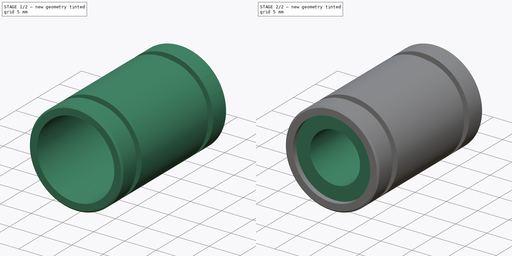
[diagram: build sequence overview — one tinted view per stage of 2, left to right]
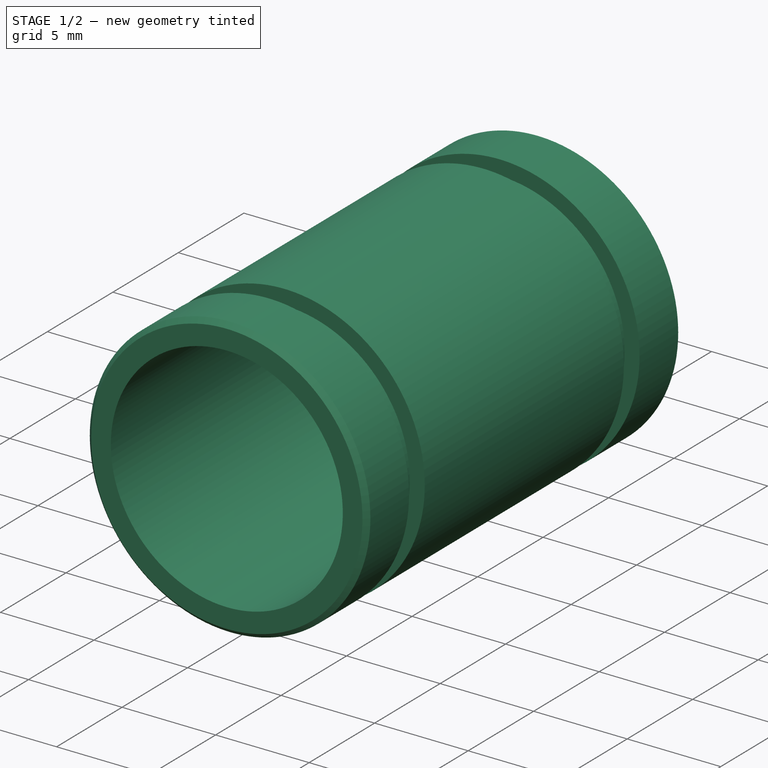
[diagram: stage 1 of 2 — iso view after this stage's code; geometry added in this stage tinted green]
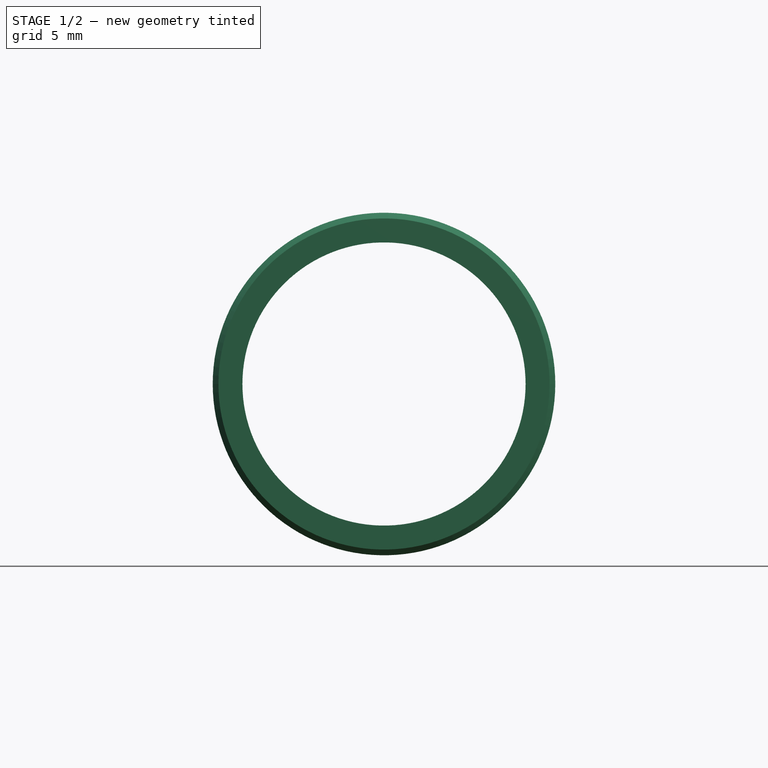
[diagram: stage 1 of 2 — front view after this stage's code; geometry added in this stage tinted green]
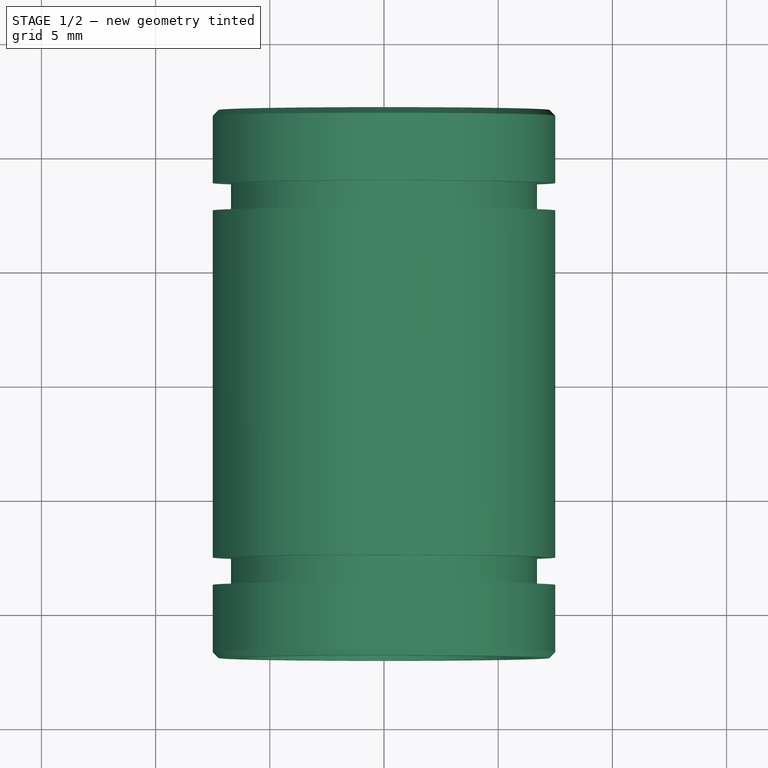
[diagram: stage 1 of 2 — top view after this stage's code; geometry added in this stage tinted green]
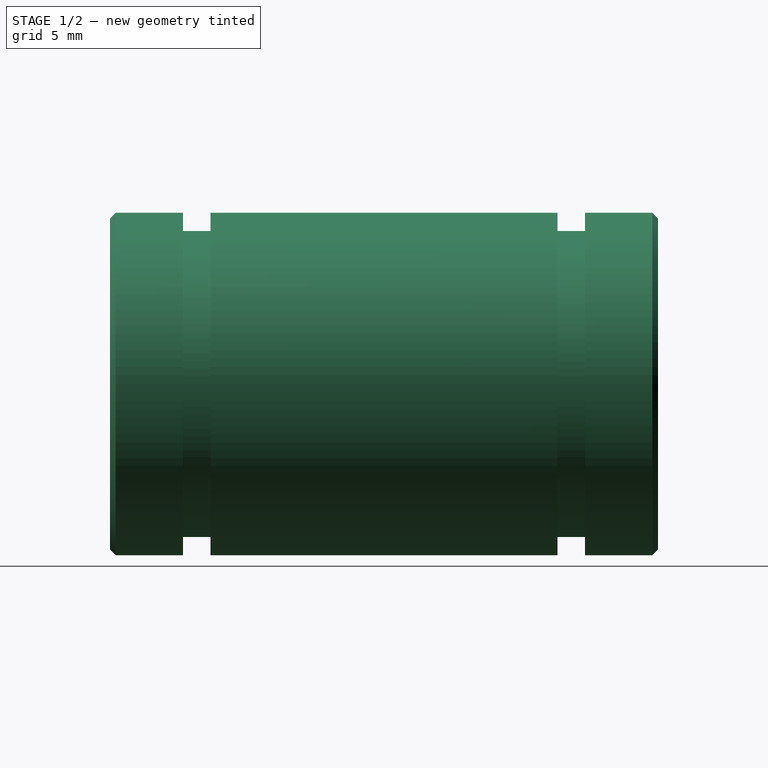
[diagram: stage 1 of 2 — right view after this stage's code; geometry added in this stage tinted green]
FCSTD DOCUMENT  (FreeCAD 0.20R26720 (Git))
Label: LM8UU
Comment: This model is licensed under CC-BY 4.0.\n\nDon´t forget to share your modifications with the community.
License: Creative Commons Attribution
LicenseURL: http://creativecommons.org/licenses/by/4.0/
objects: Sketcher::SketchObject×2, PartDesign::Body×2, PartDesign::Pad×1, PartDesign::Revolution×1, PartDesign::Chamfer×1, App::Part×1
note: 10 computed .brp shape members not serialized (recipe doc carries the construction recipe); baked Part::Feature solids carry a one-line shape summary decoded from their .brp

FEATURE [PartDesign::Body] Body  label="Center"
  Group = -> [Sketch,Pad]
  Origin = -> Origin
  Tip = -> Pad
FEATURE [Sketcher::SketchObject] Sketch001
  FullyConstrained = true
  MapMode = 5
  Support = -> [XY_Plane002]
  sketch-geometry (12):
    g0: LineSegment StartX=6.2 StartY=12 StartZ=0 EndX=6.2 EndY=-12 EndZ=0
    g1: LineSegment StartX=6.2 StartY=-12 StartZ=0 EndX=7.5 EndY=-12 EndZ=0
    g2: LineSegment StartX=7.5 StartY=-12 StartZ=0 EndX=7.5 EndY=-8.8 EndZ=0
    g3: LineSegment StartX=7.5 StartY=-8.8 StartZ=0 EndX=6.7 EndY=-8.8 EndZ=0
    g4: LineSegment StartX=6.7 StartY=-8.8 StartZ=0 EndX=6.7 EndY=-7.6 EndZ=0
    g5: LineSegment StartX=6.7 StartY=-7.6 StartZ=0 EndX=7.5 EndY=-7.6 EndZ=0
    g6: LineSegment StartX=7.5 StartY=-7.6 StartZ=0 EndX=7.5 EndY=7.6 EndZ=0
    g7: LineSegment StartX=7.5 StartY=7.6 StartZ=0 EndX=6.7 EndY=7.6 EndZ=0
    g8: LineSegment StartX=6.7 StartY=7.6 StartZ=0 EndX=6.7 EndY=8.8 EndZ=0
    g9: LineSegment StartX=6.7 StartY=8.8 StartZ=0 EndX=7.5 EndY=8.8 EndZ=0
    g10: LineSegment StartX=7.5 StartY=8.8 StartZ=0 EndX=7.5 EndY=12 EndZ=0
    g11: LineSegment StartX=7.5 StartY=12 StartZ=0 EndX=6.2 EndY=12 EndZ=0
  constraints (36):
    c: Vertical(g0)
    c: Coincident(g0,g1)
    c: Horizontal(g1)
    c: Coincident(g1,g2)
    c: Vertical(g2)
    c: Coincident(g2,g3)
    c: Horizontal(g3)
    c: Coincident(g3,g4)
    c: Vertical(g4)
    c: Coincident(g4,g5)
    c: Horizontal(g5)
    c: Coincident(g5,g6)
    c: Vertical(g6)
    c: Coincident(g6,g7)
    c: Horizontal(g7)
    c: Coincident(g7,g8)
    c: Vertical(g8)
    c: Coincident(g8,g9)
    c: Coincident(g9,g10)
    c: Vertical(g10)
    c: Coincident(g10,g11)
    c: Coincident(g11,g0)
    c: Horizontal(g11)
    c: Equal(g5,g7)
    c: Equal(g8,g4)
    c: Horizontal(g9)
    c: Vertical(g5,g2)
    c: Vertical(g6,g9)
    c: DistanceX(g-1,g0) = 6.2
    c: DistanceX(g11,g11) = 1.3
    c: DistanceY(g8,g8) = 1.2
    c: Equal(g2,g10)
    c: DistanceY(g0,g0) = 24
    c: DistanceY(g0,g-1) = 12
    c: DistanceY(g6,g6) = 15.2
    c: DistanceX(g9,g9) = 0.8
FEATURE [PartDesign::Revolution] Revolution
  Angle = 360
  Axis = (0,1,0)
  Base = (0,0,0)
  Profile = -> Sketch001
  ReferenceAxis = -> Sketch001 [V_Axis]
  Reversed = true
FEATURE [PartDesign::Chamfer] Chamfer
  Angle = 45
  Base = -> Revolution [Edge4,Edge17]
  BaseFeature = -> Revolution
  ChamferType = 0
  FlipDirection = false
  Size = 0.25
  Size2 = 1
  SupportTransform = false
FEATURE [PartDesign::Body] Body001  label="Metal"
  Group = -> [Sketch001,Revolution,Chamfer]
  Origin = -> Origin002
  Tip = -> Chamfer
FEATURE [App::Part] Part  label="LM8UU"
  Group = -> [Body,Body001]
  Origin = -> Origin001
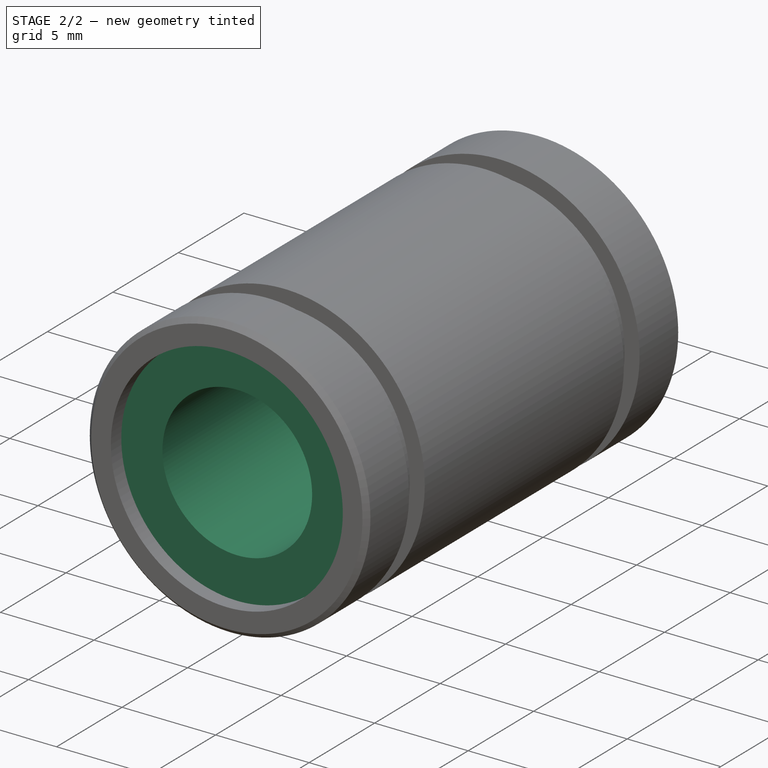
[diagram: stage 2 of 2 — iso view after this stage's code; geometry added in this stage tinted green]
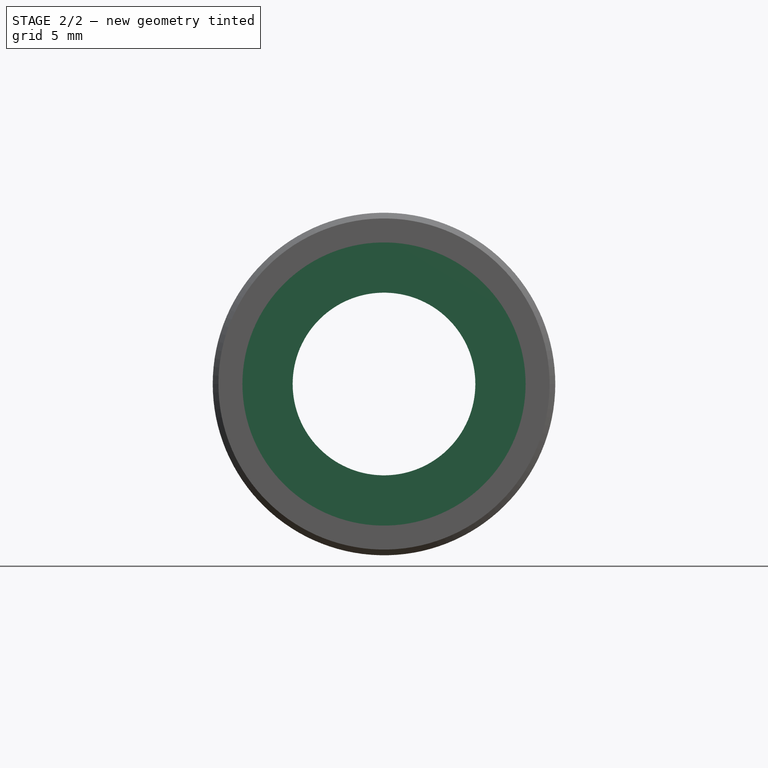
[diagram: stage 2 of 2 — front view after this stage's code; geometry added in this stage tinted green]
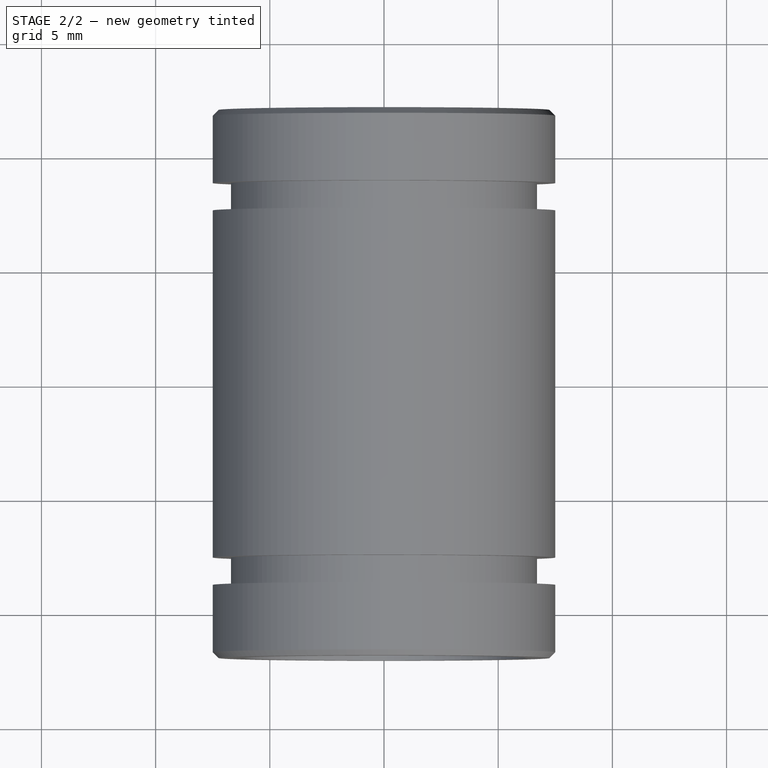
[diagram: stage 2 of 2 — top view after this stage's code; geometry added in this stage tinted green]
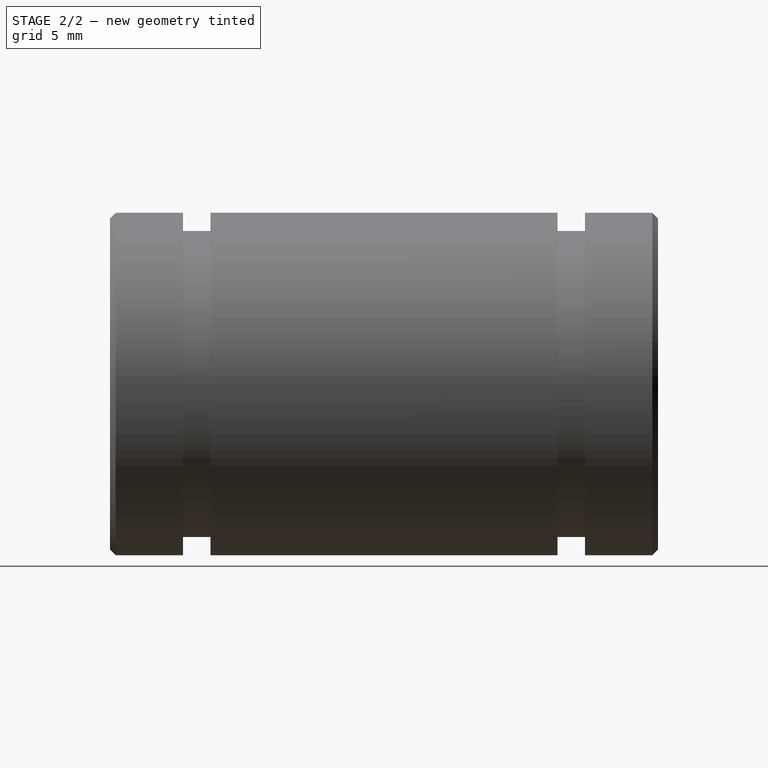
[diagram: stage 2 of 2 — right view after this stage's code; geometry added in this stage tinted green]
FEATURE [Sketcher::SketchObject] Sketch
  FullyConstrained = true
  MapMode = 5
  Placement = pos=(0,0,0) rot=(1,0,0;1.5708rad)
  Support = -> [XZ_Plane]
  sketch-geometry (2):
    g0: Circle CenterX=0 CenterY=0 CenterZ=0 NormalX=0 NormalY=0 NormalZ=1 AngleXU=0 Radius=4
    g1: Circle CenterX=0 CenterY=0 CenterZ=0 NormalX=0 NormalY=0 NormalZ=1 AngleXU=0 Radius=6.2
  constraints (4):
    c: Coincident(g0,g-1)
    c: Coincident(g1,g0)
    c: Diameter(g0) = 8
    c: Diameter(g1) = 12.4
FEATURE [PartDesign::Pad] Pad
  Direction = (0,-1,2e-16)
  Length = 22.4
  Length2 = 100
  Midplane = true
  Placement = pos=(0,0,0) rot=(1,0,0;1.5708rad)
  Profile = -> Sketch
  ReferenceAxis = -> Sketch [N_Axis]
  Type = 0
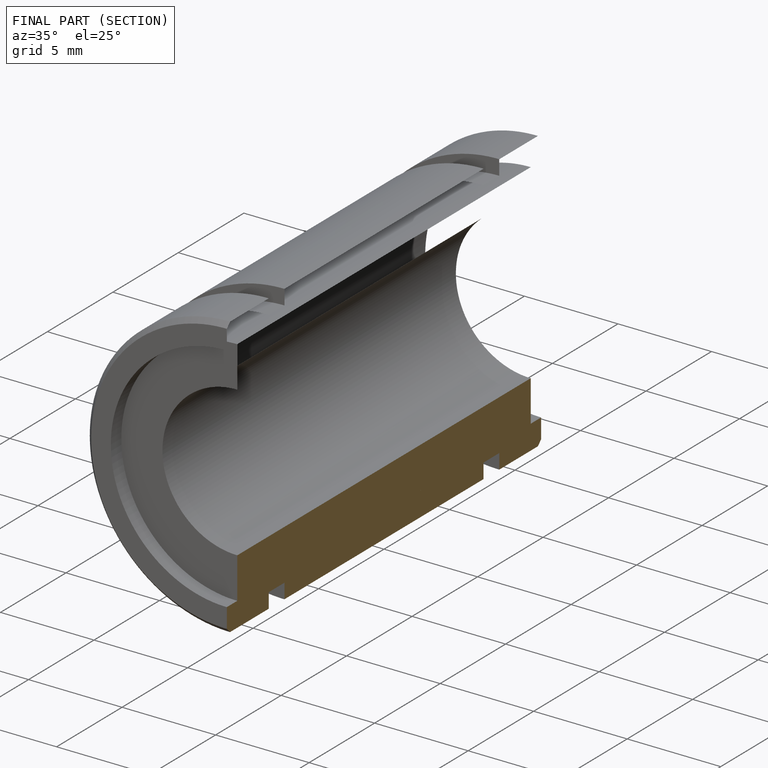
[diagram: finished part — half-section view (interior)]
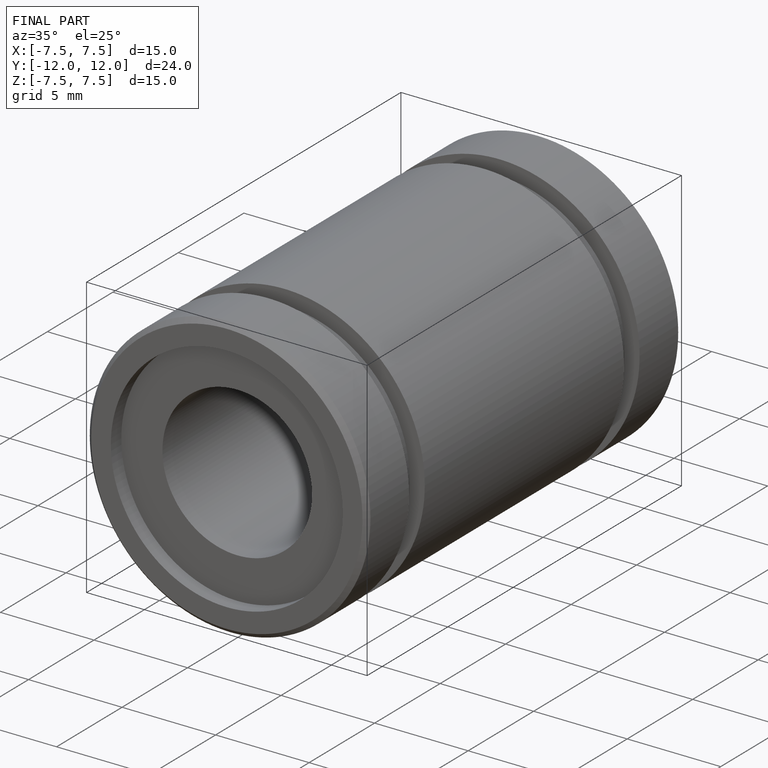
[diagram: finished part — iso view with bounding-box wireframe]
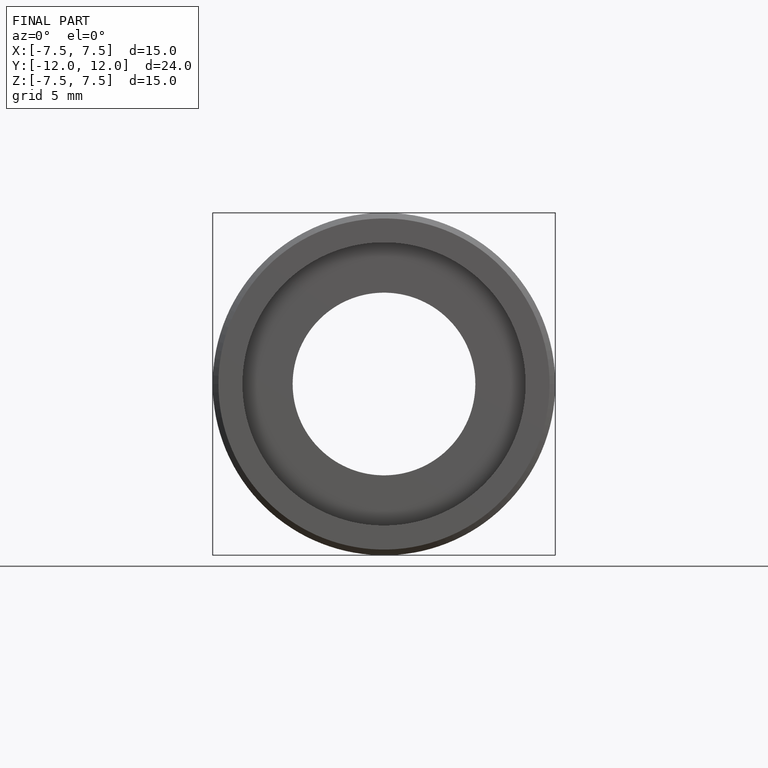
[diagram: finished part — front view with bounding-box wireframe]
